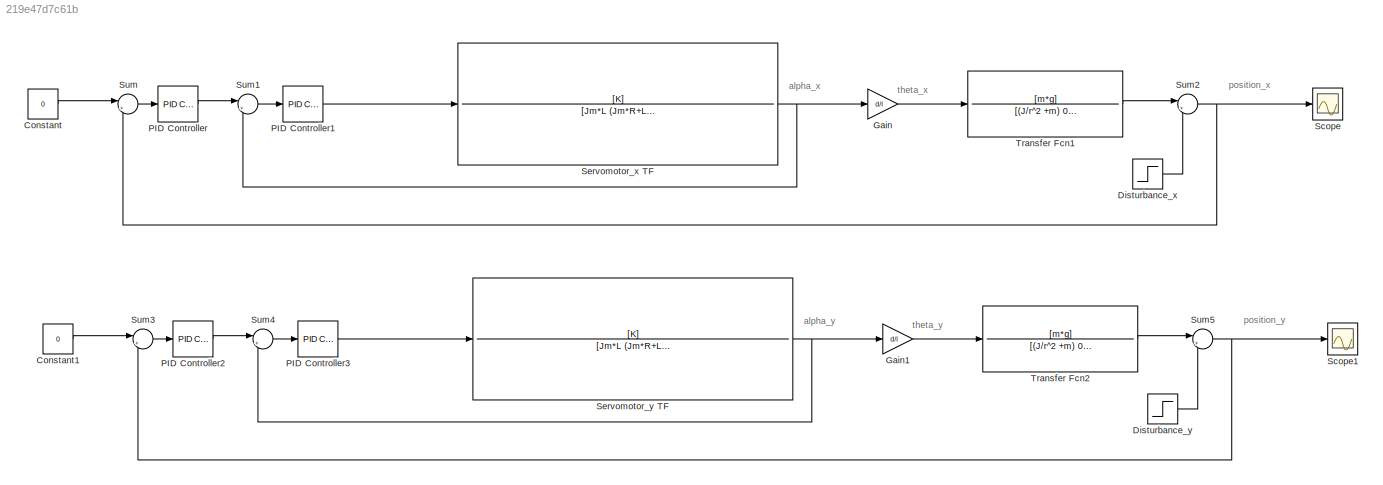
MODEL slx_219e47d7c61b
KIND model
CONFIG AbsTol = auto
CONFIG EnableMultiTasking = off
CONFIG FixedStep = 1e-3
CONFIG MaxStep = auto
CONFIG MinStep = auto
CONFIG RelTol = 1e-3
CONFIG SampleTimeConstraint = Unconstrained
CONFIG SolverName = VariableStepAuto
CONFIG StartTime = 0.0
CONFIG StopTime = 10.0
BLOCK [Constant] Constant
  Value = 0
BLOCK [Constant] Constant1
  Value = 0
BLOCK [Step] Disturbance_x
  After = 0
  Before = 0.12
  Time = 0.1
BLOCK [Step] Disturbance_y
  After = 0
  Before = 0.12
  Time = 0.1
BLOCK [Gain] Gain
  Gain = d/l
BLOCK [Gain] Gain1
  Gain = d/l
BLOCK [Reference] PID Controller  REF=pid_lib/PID Controller
  Ports = [1, 1]
  SourceBlock = pid_lib/PID Controller
  SourceProductBaseCode = SL
  SourceType = PID 1dof
BLOCK [Reference] PID Controller1  REF=pid_lib/PID Controller
  Ports = [1, 1]
  SourceBlock = pid_lib/PID Controller
  SourceProductBaseCode = SL
  SourceType = PID 1dof
BLOCK [Reference] PID Controller2  REF=pid_lib/PID Controller
  Ports = [1, 1]
  SourceBlock = pid_lib/PID Controller
  SourceProductBaseCode = SL
  SourceType = PID 1dof
BLOCK [Reference] PID Controller3  REF=pid_lib/PID Controller
  Ports = [1, 1]
  SourceBlock = pid_lib/PID Controller
  SourceProductBaseCode = SL
  SourceType = PID 1dof
BLOCK [Scope] Scope
  Floating = off
  NumInputPorts = 1
  Ports = [1]
  ScopeSpecificationString = Simulink.scopes.TimeScopeBlockCfg('CurrentConfiguration', extmgr.ConfigurationSet(extmgr.Configuration('Core','General UI',true,'FigureColor',[0 0 0]),extmgr.Configuration('Core','Source UI',true),extmgr.Configuration('Sources','WiredSimulink',true),extmgr.Configuration('Visuals','Time Domain',true,'SerializedDisplays',{struct('MinYLimReal','-0.04936','MaxYLimReal','0.13882','YLabelReal','','MinYL...<+1391ch>
BLOCK [Scope] Scope1
  Floating = off
  NumInputPorts = 1
  Ports = [1]
  ScopeSpecificationString = Simulink.scopes.TimeScopeBlockCfg('CurrentConfiguration', extmgr.ConfigurationSet(extmgr.Configuration('Core','General UI',true,'FigureColor',[0 0 0]),extmgr.Configuration('Core','Source UI',true),extmgr.Configuration('Sources','WiredSimulink',true,'DataLoggingVariableName','ScopeData1'),extmgr.Configuration('Visuals','Time Domain',true,'SerializedDisplays',{struct('MinYLimReal','-0.04936','MaxYLi...<+1430ch>
BLOCK [TransferFcn] Servomotor_x TF
  Denominator = [Jm*L (Jm*R+L*c) (R*c+K^2) 0]
  Numerator = [K]
BLOCK [TransferFcn] Servomotor_y TF
  Denominator = [Jm*L (Jm*R+L*c) (R*c+K^2) 0]
  Numerator = [K]
BLOCK [Sum] Sum
  Inputs = |+-
  Ports = [2, 1]
BLOCK [Sum] Sum1
  Inputs = |+-
  Ports = [2, 1]
BLOCK [Sum] Sum2
  Inputs = |++
  Ports = [2, 1]
BLOCK [Sum] Sum3
  Inputs = |+-
  Ports = [2, 1]
BLOCK [Sum] Sum4
  Inputs = |+-
  Ports = [2, 1]
BLOCK [Sum] Sum5
  Inputs = |++
  Ports = [2, 1]
BLOCK [TransferFcn] Transfer Fcn1
  Denominator = [(J/r^2 +m) 0 0]
  Numerator = [m*g]
BLOCK [TransferFcn] Transfer Fcn2
  Denominator = [(J/r^2 +m) 0 0]
  Numerator = [m*g]
ANNOTATION (root): alpha_x
ANNOTATION (root): alpha_y
ANNOTATION (root): position_x
ANNOTATION (root): position_y
ANNOTATION (root): theta_x
ANNOTATION (root): theta_y
LINE Constant1:1 -> Sum3:1
LINE Constant:1 -> Sum:1
LINE Disturbance_x:1 -> Sum2:2
LINE Disturbance_y:1 -> Sum5:2
LINE Gain1:1 -> Transfer Fcn2:1
LINE Gain:1 -> Transfer Fcn1:1
LINE PID Controller1:1 -> Servomotor_x TF:1
LINE PID Controller2:1 -> Sum4:1
LINE PID Controller3:1 -> Servomotor_y TF:1
LINE PID Controller:1 -> Sum1:1
NET Servomotor_x TF:1 -> Gain:1, Sum1:2
NET Servomotor_y TF:1 -> Gain1:1, Sum4:2
LINE Sum1:1 -> PID Controller1:1
NET Sum2:1 -> Scope:1, Sum:2
LINE Sum3:1 -> PID Controller2:1
LINE Sum4:1 -> PID Controller3:1
NET Sum5:1 -> Scope1:1, Sum3:2
LINE Sum:1 -> PID Controller:1
LINE Transfer Fcn1:1 -> Sum2:1
LINE Transfer Fcn2:1 -> Sum5:1
note: NET lines group one-source signal fan-out (src -> all destinations, sorted); 1:1 wires keep LINE
